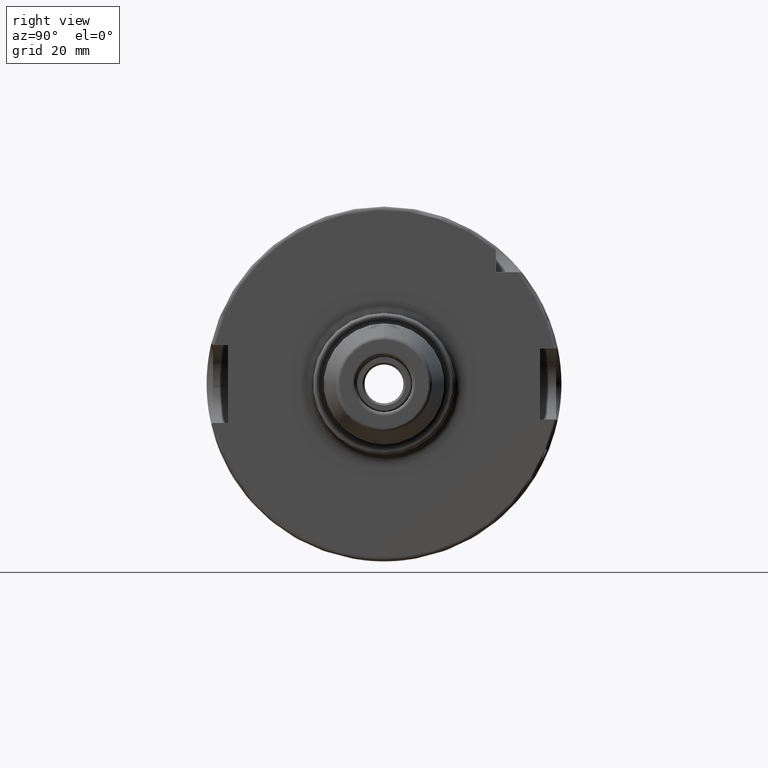
[diagram: clean part render]
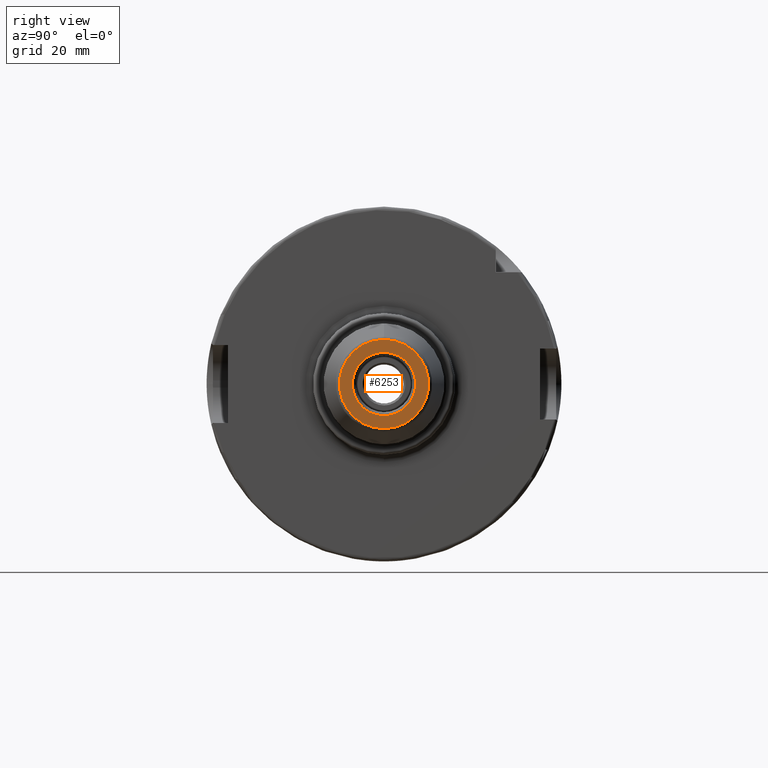
[diagram: same view with one face highlighted and labeled with its STEP entity id]
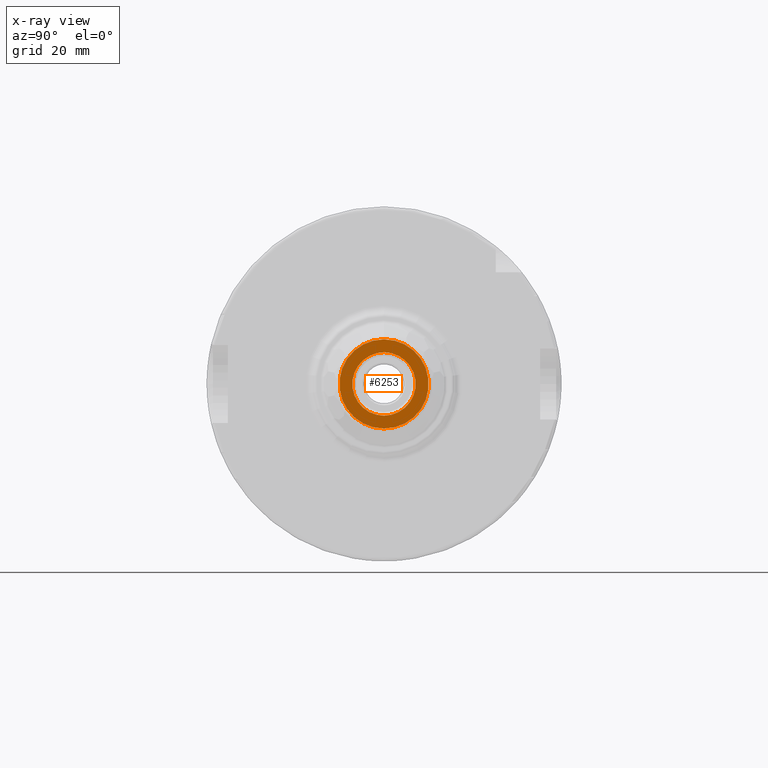
[diagram: x-ray of the same camera — body ghosted, the highlighted face saturated]
A machine part, right view. The second image highlights one B-rep face of the part: STEP entity #6253.
The next image is the same camera in x-ray: the body ghosted, the highlighted face saturated — about 0% of this face is hidden behind the body in this view.
In plain terms, the highlighted planar face has unit normal (1, 0, 0).
Its self-contained STEP definition (entity closure, byte-faithful):
#2461=CARTESIAN_POINT('',(1.E2,0.E0,0.E0));
#2462=DIRECTION('',(-1.E0,0.E0,0.E0));
#2463=DIRECTION('',(0.E0,0.E0,1.E0));
#2464=AXIS2_PLACEMENT_3D('',#2461,#2462,#2463);
#2466=CARTESIAN_POINT('',(1.E2,0.E0,0.E0));
#2467=DIRECTION('',(-1.E0,0.E0,0.E0));
#2468=DIRECTION('',(0.E0,0.E0,-1.E0));
#2469=AXIS2_PLACEMENT_3D('',#2466,#2467,#2468);
#2471=CARTESIAN_POINT('',(1.E2,0.E0,0.E0));
#2472=DIRECTION('',(1.E0,0.E0,0.E0));
#2473=DIRECTION('',(0.E0,0.E0,1.E0));
#2474=AXIS2_PLACEMENT_3D('',#2471,#2472,#2473);
#2476=CARTESIAN_POINT('',(1.E2,0.E0,0.E0));
#2477=DIRECTION('',(1.E0,0.E0,0.E0));
#2478=DIRECTION('',(0.E0,0.E0,-1.E0));
#2479=AXIS2_PLACEMENT_3D('',#2476,#2477,#2478);
#3511=CARTESIAN_POINT('',(1.E2,0.E0,-1.257560950834E1));
#3512=VERTEX_POINT('',#3511);
#3513=CARTESIAN_POINT('',(1.E2,0.E0,1.257560950834E1));
#3514=VERTEX_POINT('',#3513);
#3515=CARTESIAN_POINT('',(1.E2,0.E0,8.937499999999E0));
#3516=CARTESIAN_POINT('',(1.E2,0.E0,-8.937499999999E0));
#3517=VERTEX_POINT('',#3515);
#3518=VERTEX_POINT('',#3516);
#6238=CARTESIAN_POINT('',(1.E2,0.E0,0.E0));
#6239=DIRECTION('',(1.E0,0.E0,0.E0));
#6240=DIRECTION('',(0.E0,0.E0,1.E0));
#6241=AXIS2_PLACEMENT_3D('',#6238,#6239,#6240);
#6242=PLANE('',#6241);
#6243=ORIENTED_EDGE('',*,*,#6217,.T.);
#6244=ORIENTED_EDGE('',*,*,#6233,.T.);
#6245=EDGE_LOOP('',(#6243,#6244));
#6246=FACE_OUTER_BOUND('',#6245,.F.);
#6248=ORIENTED_EDGE('',*,*,#6247,.T.);
#6250=ORIENTED_EDGE('',*,*,#6249,.T.);
#6251=EDGE_LOOP('',(#6248,#6250));
#6252=FACE_BOUND('',#6251,.F.);
#6253=ADVANCED_FACE('',(#6246,#6252),#6242,.T.);
#2465=CIRCLE('',#2464,1.257560950834E1);
#2470=CIRCLE('',#2469,1.257560950834E1);
#2475=CIRCLE('',#2474,8.937499999999E0);
#2480=CIRCLE('',#2479,8.937499999999E0);
#6217=EDGE_CURVE('',#3514,#3512,#2465,.T.);
#6233=EDGE_CURVE('',#3512,#3514,#2470,.T.);
#6247=EDGE_CURVE('',#3517,#3518,#2475,.T.);
#6249=EDGE_CURVE('',#3518,#3517,#2480,.T.);